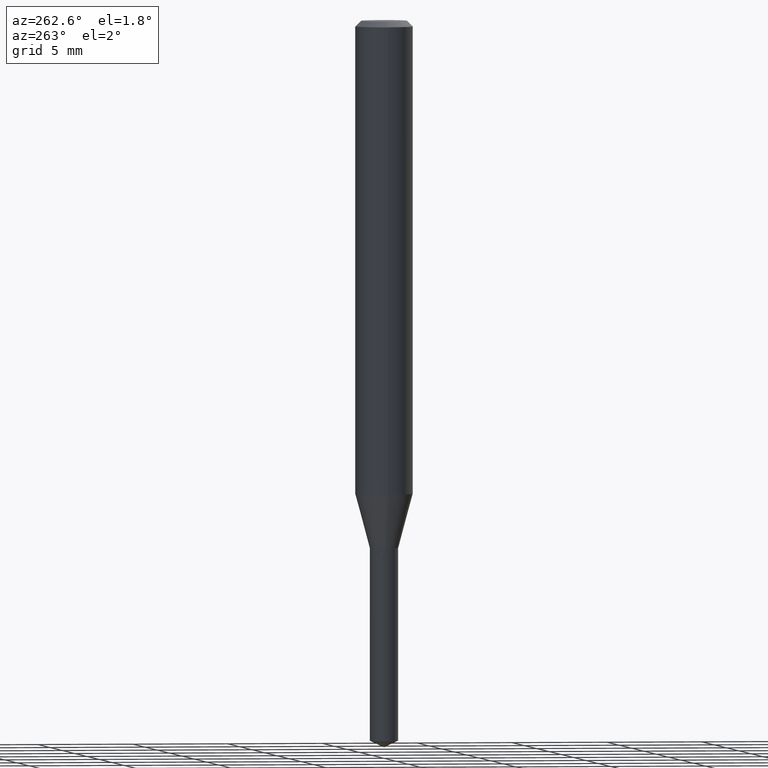
[diagram: clean part render]
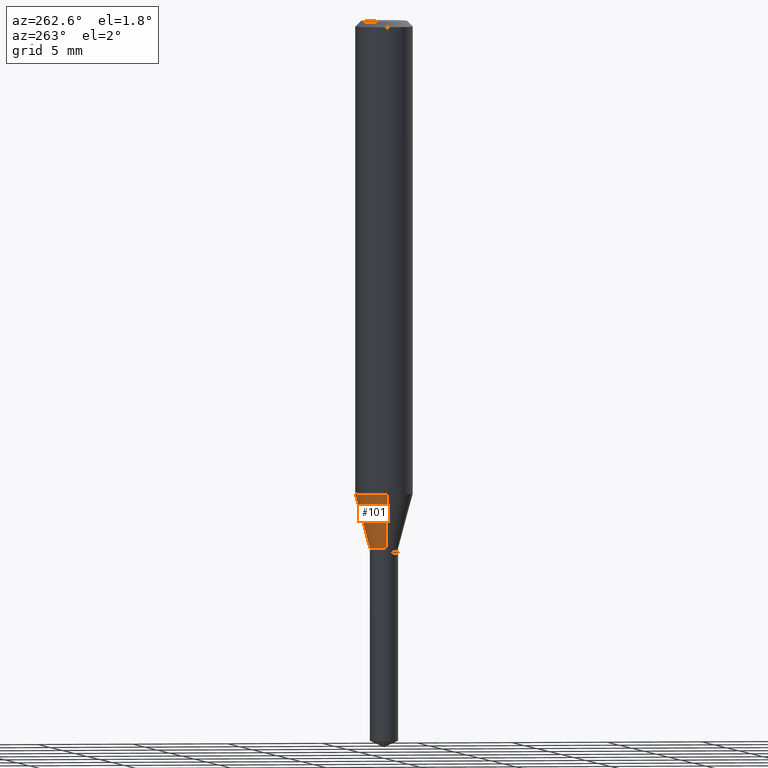
[diagram: same view with one face highlighted and labeled with its STEP entity id]
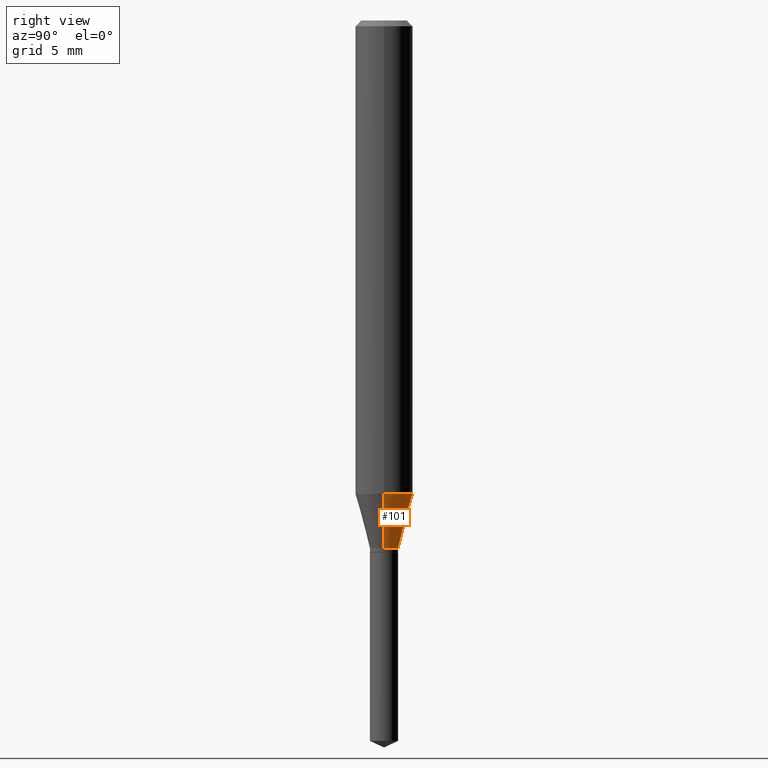
[diagram: same view with one face highlighted and labeled with its STEP entity id]
A machine part, auxiliary view. The second image highlights one B-rep face of the part: STEP entity #101.
A second angle (right view) of the same face is appended — the face is thin or edge-on in the first view.
In plain terms, the highlighted conical surface has half-angle 15 deg.
Its self-contained STEP definition (entity closure, byte-faithful):
#20 = ORIENTED_EDGE ( 'NONE', *, *, #358, .F. ) ;
#24 = DIRECTION ( 'NONE',  ( -2.445468806185136597E-29, 3.491481338843145583E-15, 1.000000000000000000 ) ) ;
#26 = CARTESIAN_POINT ( 'NONE',  ( -0.02914999999999999883, -3.598242303731074882E-15, -1.085799999999999876 ) ) ;
#32 = CARTESIAN_POINT ( 'NONE',  ( -0.05905000000000011628, -2.981866418317333587E-15, -0.9742116808536903649 ) ) ;
#49 = VECTOR ( 'NONE', #121, 39.37007874015747433 ) ;
#59 = CARTESIAN_POINT ( 'NONE',  ( 2.655290029755821085E-29, -3.791050437715887034E-15, -1.085799999999999876 ) ) ;
#66 = DIRECTION ( 'NONE',  ( -2.445468806185136597E-29, 3.491481338843145583E-15, 1.000000000000000000 ) ) ;
#70 = EDGE_CURVE ( 'NONE', #104, #437, #262, .T. ) ;
#73 = ORIENTED_EDGE ( 'NONE', *, *, #129, .T. ) ;
#95 = CARTESIAN_POINT ( 'NONE',  ( 0.02914999999999999883, -3.994603799770441449E-15, -1.085799999999999876 ) ) ;
#101 = ADVANCED_FACE ( 'NONE', ( #402 ), #444, .T. ) ;
#104 = VERTEX_POINT ( 'NONE', #95 ) ;
#121 = DIRECTION ( 'NONE',  ( -0.2588190451025213501, 5.211531920934551042E-15, 0.9659258262890682012 ) ) ;
#123 = VERTEX_POINT ( 'NONE', #250 ) ;
#129 = EDGE_CURVE ( 'NONE', #437, #423, #192, .T. ) ;
#141 = AXIS2_PLACEMENT_3D ( 'NONE', #341, #344, #196 ) ;
#146 = DIRECTION ( 'NONE',  ( 1.000000000000000000, -6.982962677686268288E-15, 0.000000000000000000 ) ) ;
#184 = DIRECTION ( 'NONE',  ( 0.2588190451025213501, 1.565188264969621968E-15, 0.9659258262890682012 ) ) ;
#192 = LINE ( 'NONE', #307, #49 ) ;
#196 = DIRECTION ( 'NONE',  ( 1.000000000000000000, -6.982962677686266711E-15, 0.000000000000000000 ) ) ;
#223 = EDGE_CURVE ( 'NONE', #123, #423, #462, .T. ) ;
#250 = CARTESIAN_POINT ( 'NONE',  ( 0.05905000000000011628, -3.813785849901049183E-15, -0.9742116808536903649 ) ) ;
#257 = ORIENTED_EDGE ( 'NONE', *, *, #70, .T. ) ;
#262 = CIRCLE ( 'NONE', #384, 0.02914999999999999883 ) ;
#273 = CARTESIAN_POINT ( 'NONE',  ( 0.02914999999999999883, -3.994603799770441449E-15, -1.085799999999999876 ) ) ;
#295 = EDGE_LOOP ( 'NONE', ( #257, #73, #410, #20 ) ) ;
#297 = AXIS2_PLACEMENT_3D ( 'NONE', #324, #66, #321 ) ;
#307 = CARTESIAN_POINT ( 'NONE',  ( -0.02914999999999999883, -3.583927230241817764E-15, -1.085799999999999876 ) ) ;
#312 = VECTOR ( 'NONE', #184, 39.37007874015747433 ) ;
#321 = DIRECTION ( 'NONE',  ( 1.000000000000000000, -6.982962677686268288E-15, 0.000000000000000000 ) ) ;
#324 = CARTESIAN_POINT ( 'NONE',  ( 2.655290029755821085E-29, -3.791050437715887034E-15, -1.085799999999999876 ) ) ;
#341 = CARTESIAN_POINT ( 'NONE',  ( 2.382404276148889621E-29, -3.401441903783673869E-15, -0.9742116808536903649 ) ) ;
#344 = DIRECTION ( 'NONE',  ( -2.445468806185136597E-29, 3.491481338843145583E-15, 1.000000000000000000 ) ) ;
#358 = EDGE_CURVE ( 'NONE', #104, #123, #467, .T. ) ;
#384 = AXIS2_PLACEMENT_3D ( 'NONE', #59, #24, #146 ) ;
#402 = FACE_OUTER_BOUND ( 'NONE', #295, .T. ) ;
#410 = ORIENTED_EDGE ( 'NONE', *, *, #223, .F. ) ;
#423 = VERTEX_POINT ( 'NONE', #32 ) ;
#437 = VERTEX_POINT ( 'NONE', #26 ) ;
#444 = CONICAL_SURFACE ( 'NONE', #297, 0.02914999999999999883, 0.2617993877991500740 ) ;
#462 = CIRCLE ( 'NONE', #141, 0.05905000000000011628 ) ;
#467 = LINE ( 'NONE', #273, #312 ) ;